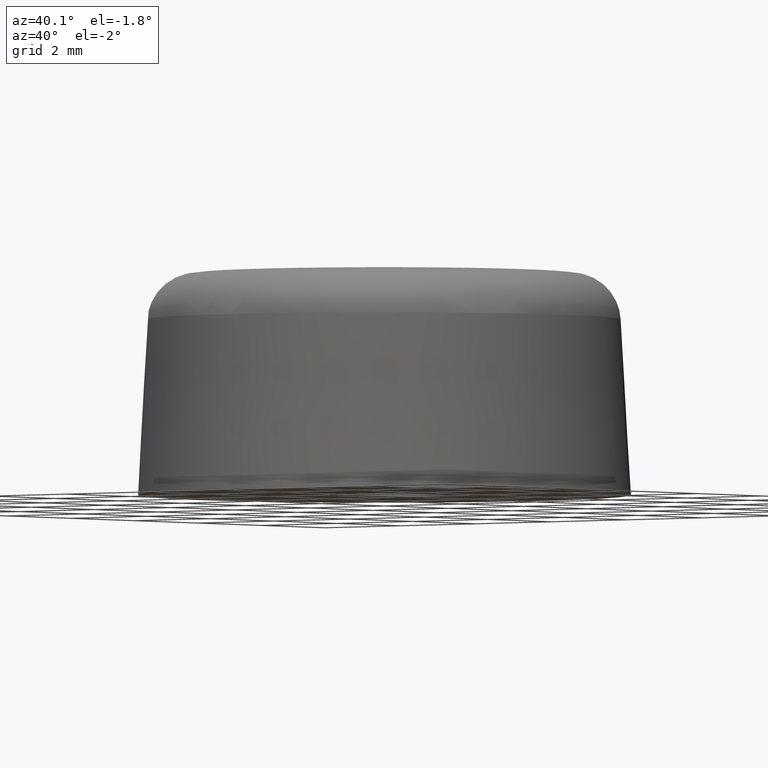
[diagram: clean part render]
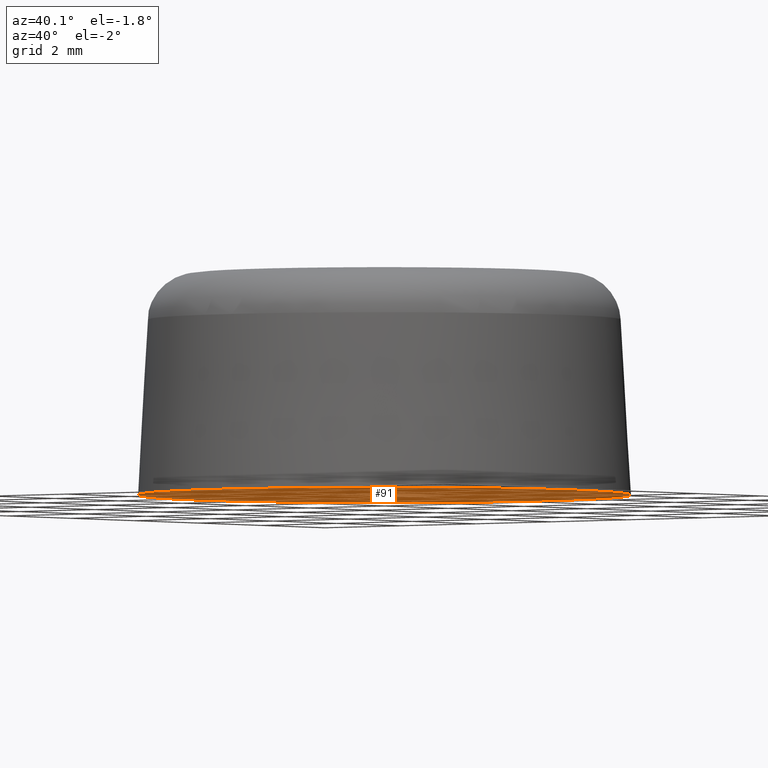
[diagram: same view with one face highlighted and labeled with its STEP entity id]
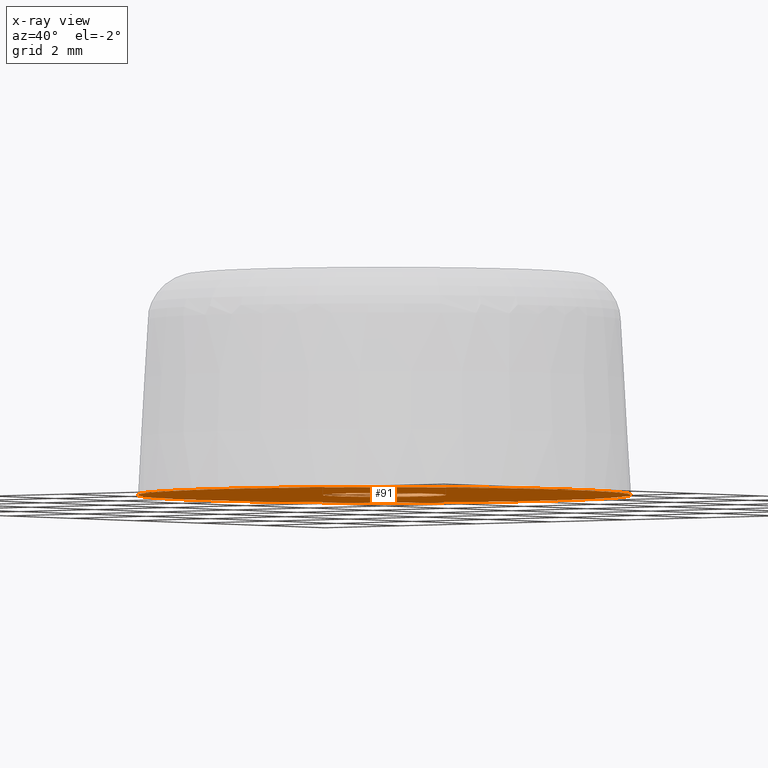
[diagram: x-ray of the same camera — body ghosted, the highlighted face saturated]
A machine part, auxiliary view. The second image highlights one B-rep face of the part: STEP entity #91.
The next image is the same camera in x-ray: the body ghosted, the highlighted face saturated — about 0% of this face is hidden behind the body in this view.
In plain terms, the highlighted planar face has unit normal (0, 0, 1).
Its self-contained STEP definition (entity closure, byte-faithful):
#20=PLANE('',#107);
#27=FACE_BOUND('',#48,.T.);
#34=FACE_OUTER_BOUND('',#47,.T.);
#47=EDGE_LOOP('',(#82));
#48=EDGE_LOOP('',(#83));
#52=CIRCLE('',#100,5.);
#55=CIRCLE('',#106,1.25);
#59=VERTEX_POINT('',#148);
#62=VERTEX_POINT('',#157);
#66=EDGE_CURVE('',#59,#59,#52,.T.);
#69=EDGE_CURVE('',#62,#62,#55,.T.);
#82=ORIENTED_EDGE('',*,*,#66,.F.);
#83=ORIENTED_EDGE('',*,*,#69,.T.);
#91=ADVANCED_FACE('',(#34,#27),#20,.F.);
#100=AXIS2_PLACEMENT_3D('',#149,#122,#123);
#106=AXIS2_PLACEMENT_3D('',#158,#134,#135);
#107=AXIS2_PLACEMENT_3D('',#159,#136,#137);
#122=DIRECTION('center_axis',(0.,0.,1.));
#123=DIRECTION('ref_axis',(-1.,0.,0.));
#134=DIRECTION('center_axis',(0.,0.,1.));
#135=DIRECTION('ref_axis',(1.,0.,0.));
#136=DIRECTION('center_axis',(0.,0.,1.));
#137=DIRECTION('ref_axis',(1.,0.,0.));
#148=CARTESIAN_POINT('',(-5.,0.,0.));
#149=CARTESIAN_POINT('Origin',(0.,0.,0.));
#157=CARTESIAN_POINT('',(-1.25,-1.53080849893419E-16,0.));
#158=CARTESIAN_POINT('Origin',(0.,0.,0.));
#159=CARTESIAN_POINT('Origin',(0.,0.,0.));